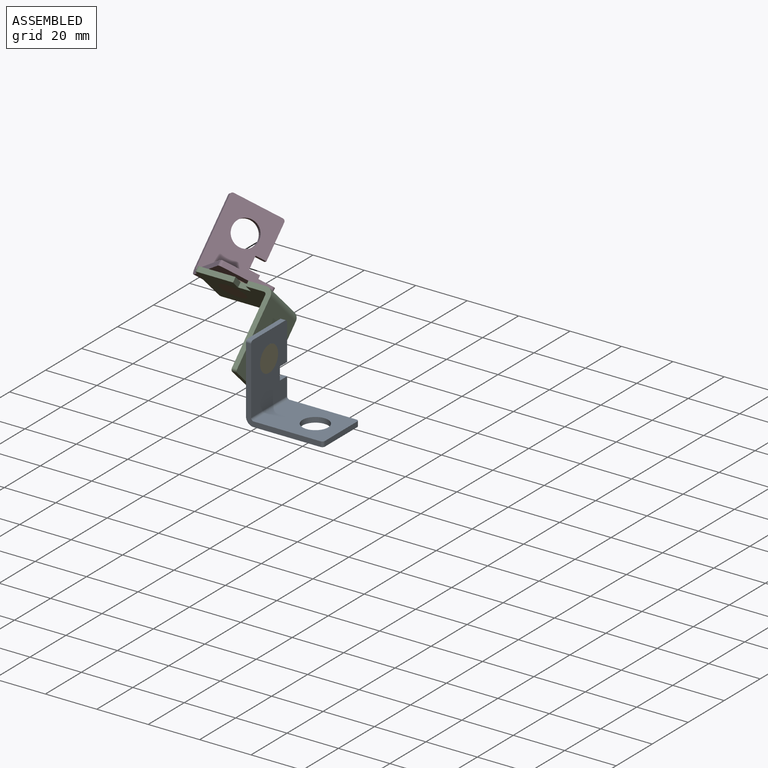
[diagram: assembled view]
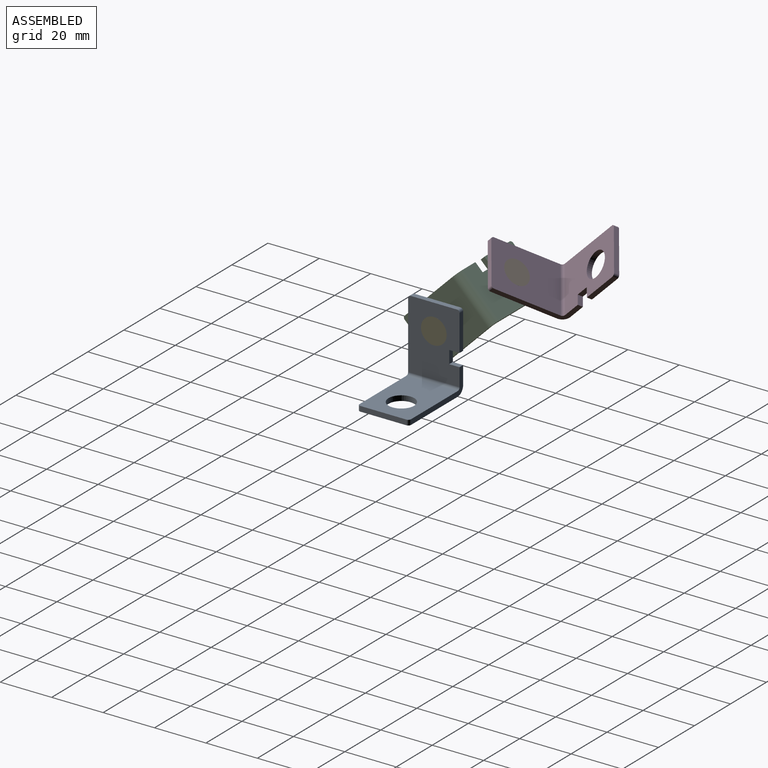
[diagram: assembled view, second angle]
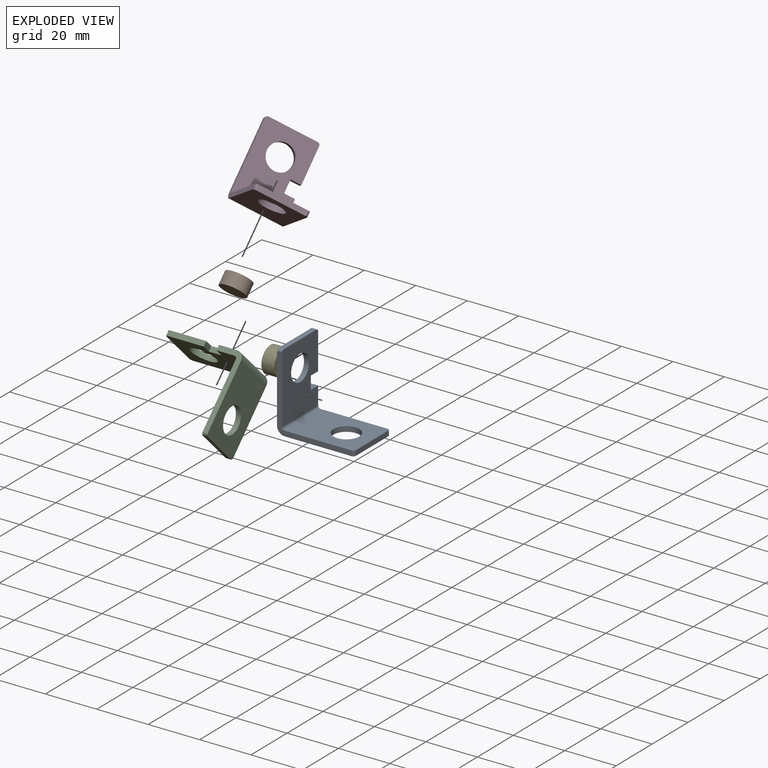
[diagram: exploded view]
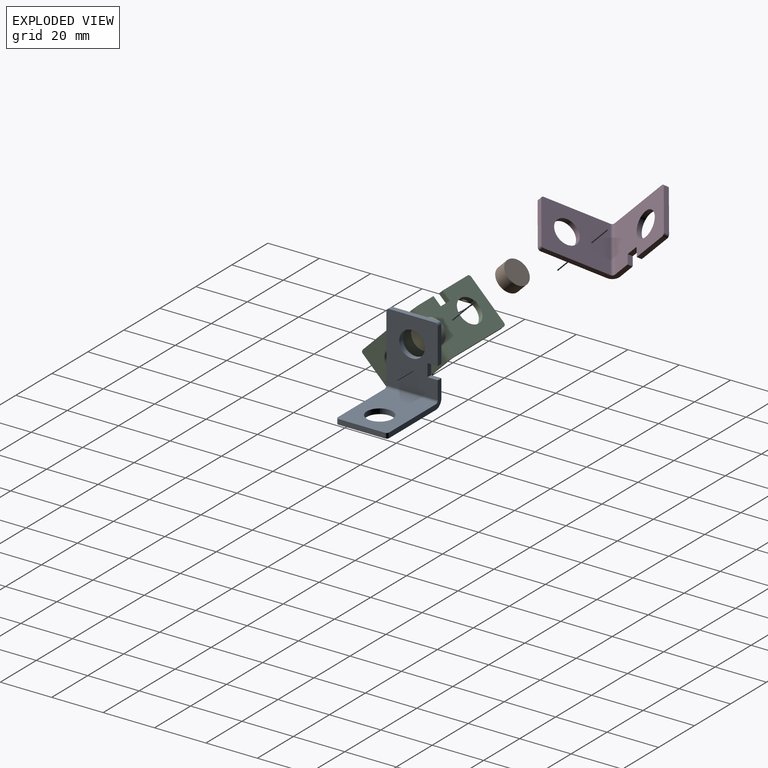
[diagram: exploded view, second angle]
ASSEMBLY  parts=5 mates=4
PART A: 20 faces, bbox 30x20x30 mm
  f0: plane 29x29mm, normal (0,-1,0), area 110.3mm2, adj f1,f9,f10,f11,f14,f16,f18,f19
  f1: plane 27x20mm, normal (0,0,-1), area 461mm2, adj f0,f2,f12,f13,f14,f15,f16
  f2: plane 29x10mm, normal (0,1,0), area 72.3mm2, adj f1,f3,f9,f10,f11,f14,f15,f19
  f3: plane 4x2mm, normal (0,0,1), area 8mm2, adj f2,f4,f9,f10
  f4: plane 5x2mm, normal (0,1,0), area 10mm2, adj f3,f5,f9,f10
  f5: plane 4x2mm, normal (0,0,-1), area 8mm2, adj f4,f6,f9,f10
  f6: plane 14x2mm, normal (0,1,0), area 28mm2, adj f5,f9,f10,f17
  f7: plane 18x2mm, normal (0,0,1), area 36mm2, adj f9,f10,f17,f18
  f8: cylinder r=5mm len=10mm, axis (-1,0,0), area 62.8mm2, adj f9,f10
  f9: plane 27x20mm, normal (1,0,0), area 441mm2, adj f0,f2,f3,f4,f5,f6,f7,f8
  f10: plane 27x20mm, normal (-1,0,0), area 441mm2, adj f0,f2,f3,f4,f5,f6,f7,f8
  f11: plane 27x20mm, normal (0,0,1), area 461mm2, adj f0,f2,f12,f13,f15,f16,f19
  f12: plane 18x2mm, normal (1,0,0), area 36mm2, adj f1,f11,f15,f16
  f13: cylinder r=5mm len=10mm, axis (0,0,1), area 62.8mm2, adj f1,f11
  f14: cylinder r=3mm len=20mm, axis (0,1,0), area 94.2mm2, adj f0,f1,f2,f10
  f15: cylinder r=1mm len=2mm, axis (0,0,-1), area 3.1mm2, adj f1,f2,f11,f12
  f16: cylinder r=1mm len=2mm, axis (0,0,1), area 3.1mm2, adj f0,f1,f11,f12
  f17: cylinder r=1mm len=2mm, axis (-1,0,0), area 3.1mm2, adj f6,f7,f9,f10
  f18: cylinder r=1mm len=2mm, axis (-1,0,0), area 3.1mm2, adj f0,f7,f9,f10
  f19: cylinder r=1mm len=20mm, axis (0,1,0), area 31.4mm2, adj f0,f2,f9,f11
PART B: 3 faces, bbox 10x5x10 mm
  f0: cylinder r=5mm len=10mm, axis (0,1,0), area 157.1mm2, adj f1,f2
  f1: plane 10x10mm, normal (0,-1,0), area 78.5mm2, adj f0
  f2: plane 10x10mm, normal (0,1,0), area 78.5mm2, adj f0
PART C: same geometry as A
PART D: same geometry as A
PART E: same geometry as B
PLACE A at identity fixed
PLACE B rot(axis=(1,0,0),45deg) t=(-21,26.26,36.26)mm
PLACE C rot(axis=(0.68,-0.28,-0.68),148.6deg) t=(-1,31.21,27.07)mm
PLACE D rot(axis=(-0.68,-0.28,-0.68),62.8deg) t=(-42.21,29.85,29.85)mm
PLACE E rot(axis=(0.71,0.71,0),180deg) t=(2,10,20)mm
MATE revolute C.f13 <-> E.f0  axis (-1,0,0) through (-3,10,20)mm
MATE fastened B.f0 <-> C.f8  axis (0,-0.71,-0.71) through (-21,22.73,32.73)mm
MATE revolute D.f13 <-> B.f0  axis (0,0.71,0.71) through (-21,26.26,36.26)mm
MATE fastened A.f8 <-> E.f0  axis (1,0,0) through (2,10,20)mm
